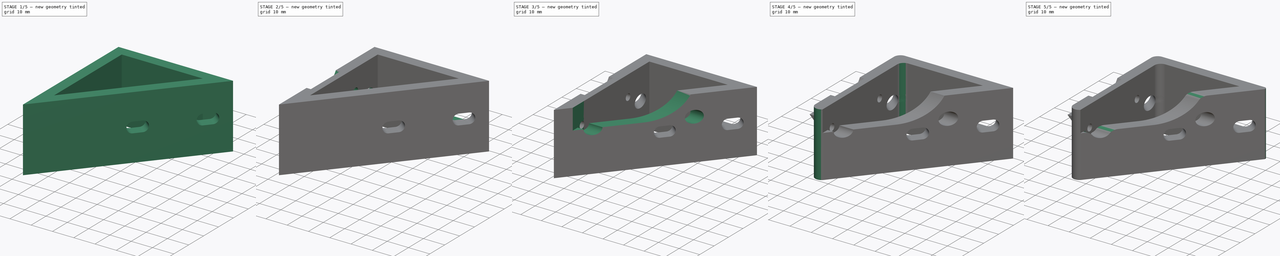
[diagram: build sequence overview — one tinted view per stage of 5, left to right]
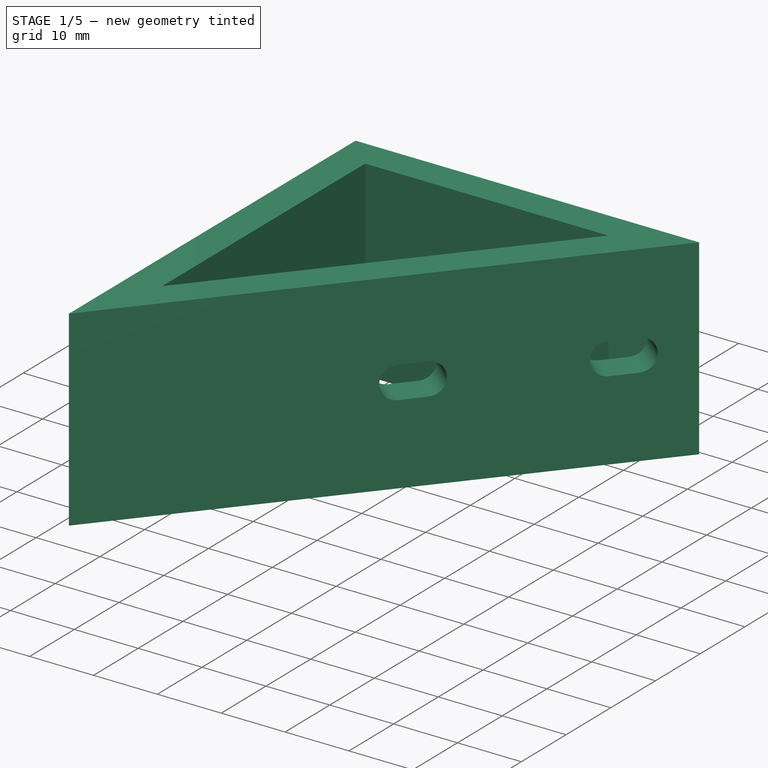
[diagram: stage 1 of 5 — iso view after this stage's code; geometry added in this stage tinted green]
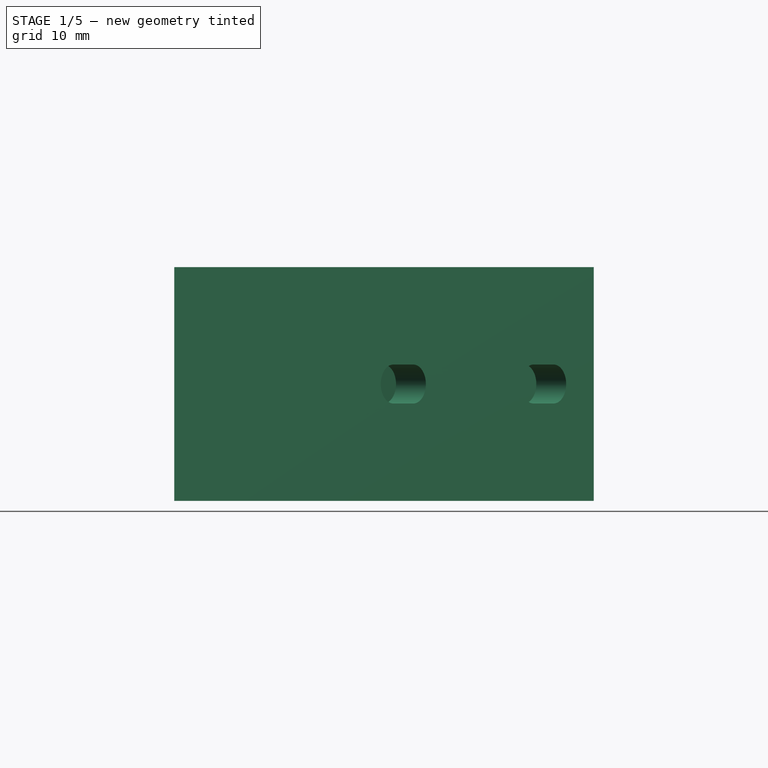
[diagram: stage 1 of 5 — front view after this stage's code; geometry added in this stage tinted green]
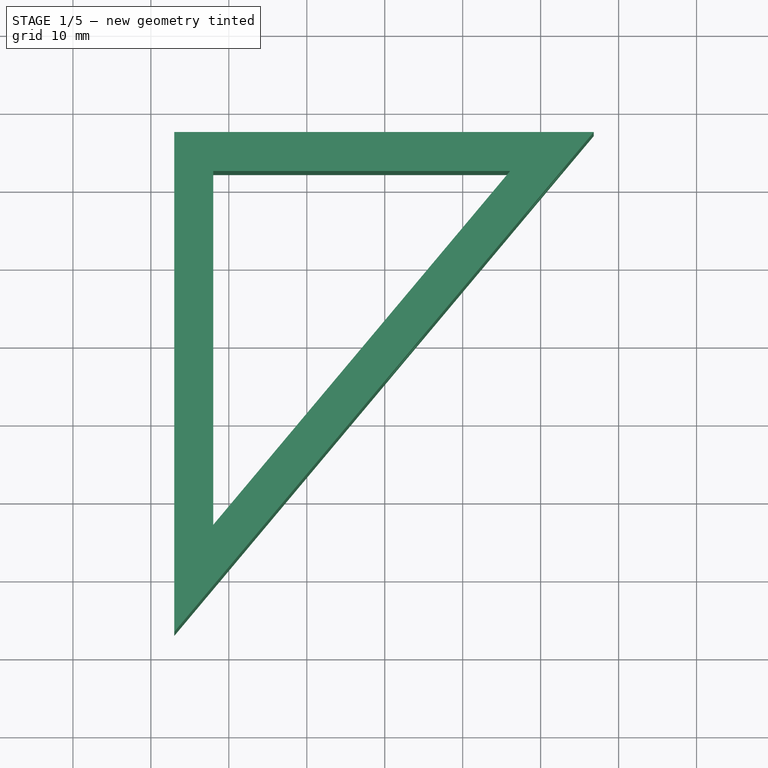
[diagram: stage 1 of 5 — top view after this stage's code; geometry added in this stage tinted green]
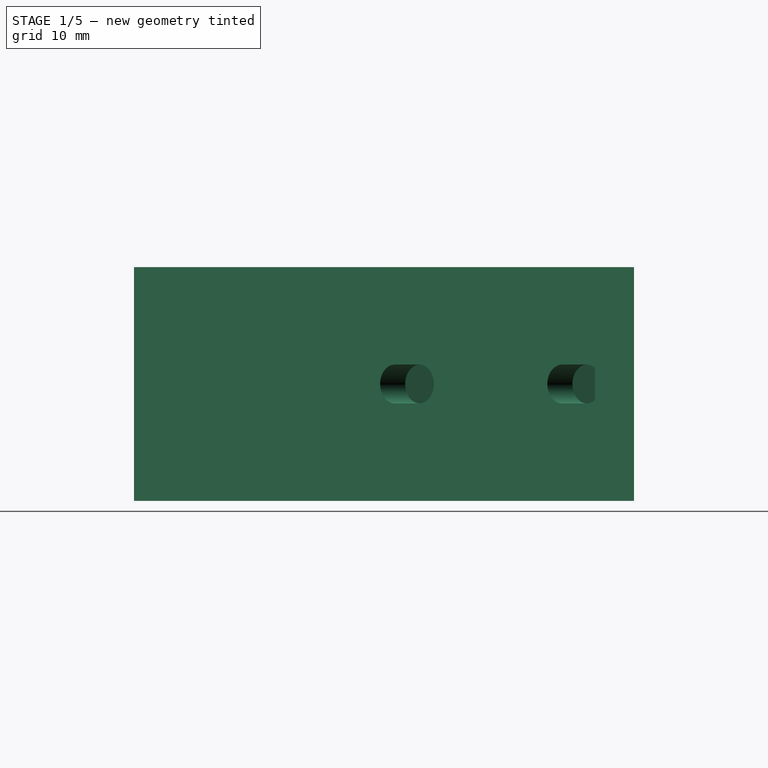
[diagram: stage 1 of 5 — right view after this stage's code; geometry added in this stage tinted green]
FCSTD DOCUMENT  (FreeCAD 0.15R4671 (Git))
Label: focuser_mount-50-3
License: All rights reserved
LicenseURL: http://en.wikipedia.org/wiki/All_rights_reserved
objects: Sketcher::SketchObject×10, PartDesign::Pocket×8, PartDesign::Fillet×6, PartDesign::Pad×2
note: 36 computed .brp shape members not serialized (recipe doc carries the construction recipe); baked Part::Feature solids carry a one-line shape summary decoded from their .brp

FEATURE [Sketcher::SketchObject] Sketch
  sketch-geometry (25):
    g0: Circle [constr] CenterX=0 CenterY=0 CenterZ=0 NormalX=0 NormalY=0 NormalZ=1 Radius=34
    g1: LineSegment [constr] StartX=1.85935e-05 StartY=-34 StartZ=0 EndX=-72.9132 EndY=-34 EndZ=0
    g2: LineSegment [constr] StartX=-26.0455 StartY=21.8547 StartZ=0 EndX=-72.9132 EndY=-34 EndZ=0
    g3: LineSegment [constr] StartX=-59 StartY=-20 StartZ=0 EndX=-45 EndY=-20 EndZ=0
    g4: LineSegment [constr] StartX=-45 StartY=-20 StartZ=0 EndX=-45 EndY=-48 EndZ=0
    g5: LineSegment [constr] StartX=-45 StartY=-48 StartZ=0 EndX=-59 EndY=-48 EndZ=0
    g6: LineSegment [constr] StartX=-59 StartY=-48 StartZ=0 EndX=-59 EndY=-20 EndZ=0
    g7: LineSegment [constr] StartX=-59 StartY=16.9 StartZ=0 EndX=-45 EndY=16.9 EndZ=0
    g8: LineSegment [constr] StartX=-45 StartY=16.9 StartZ=0 EndX=-45 EndY=-6.1 EndZ=0
    g9: LineSegment [constr] StartX=-45 StartY=-6.1 StartZ=0 EndX=-59 EndY=-6.1 EndZ=0
    g10: LineSegment [constr] StartX=-59 StartY=-6.1 StartZ=0 EndX=-59 EndY=16.9 EndZ=0
    g11: GeomPoint [constr] X=-59 Y=5.4 Z=0
    g12: LineSegment [constr] StartX=-114 StartY=26.4 StartZ=0 EndX=-67 EndY=26.4 EndZ=0
    g13: LineSegment [constr] StartX=-67 StartY=26.4 StartZ=0 EndX=-67 EndY=16.4 EndZ=0
    g14: LineSegment [constr] StartX=-67 StartY=-15.6 StartZ=0 EndX=-114 EndY=-15.6 EndZ=0
    g15: LineSegment [constr] StartX=-114 StartY=-15.6 StartZ=0 EndX=-114 EndY=26.4 EndZ=0
    g16: LineSegment [constr] StartX=-67 StartY=16.4 StartZ=0 EndX=-65 EndY=16.4 EndZ=0
    g17: LineSegment [constr] StartX=-65 StartY=16.4 StartZ=0 EndX=-65 EndY=-5.6 EndZ=0
    g18: LineSegment [constr] StartX=-65 StartY=-5.6 StartZ=0 EndX=-67 EndY=-5.6 EndZ=0
    g19: LineSegment [constr] StartX=-67 StartY=-5.6 StartZ=0 EndX=-67 EndY=-15.6 EndZ=0
    g20: LineSegment [constr] StartX=-59 StartY=5.4 StartZ=0 EndX=-114 EndY=5.4 EndZ=0
    g21: LineSegment StartX=-67 StartY=-15.6 StartZ=0 EndX=-67 EndY=-26.9529 EndZ=0
    g22: LineSegment StartX=-67 StartY=-26.9529 StartZ=0 EndX=-13.1898 EndY=37.1756 EndZ=0
    g23: LineSegment StartX=-67 StartY=-15.6 StartZ=0 EndX=-67 EndY=37.1756 EndZ=0
    g24: LineSegment StartX=-67 StartY=37.1756 StartZ=0 EndX=-13.1898 EndY=37.1756 EndZ=0
  constraints (72):
    c: Coincident(g0,g-1)
    c: Radius(g0) = 34
    c: PointOnObject(g1,g0)
    c: Horizontal(g1)
    c: Tangent(g1,g0)
    c: PointOnObject(g2,g0)
    c: Tangent(g2,g0)
    c: Angle(g1,g2) = 0.872665
    c: Coincident(g2,g1)
    c: Coincident(g3,g4)
    c: Coincident(g4,g5)
    c: Coincident(g5,g6)
    c: Coincident(g6,g3)
    c: Horizontal(g3)
    c: Horizontal(g5)
    c: Vertical(g4)
    c: Vertical(g6)
    c: DistanceX(g3) = 14
    c: DistanceY(g4) = -28
    c: Symmetric(g3,g4,g1)
    c: Coincident(g7,g8)
    c: Coincident(g8,g9)
    c: Coincident(g9,g10)
    c: Coincident(g10,g7)
    c: Horizontal(g7)
    c: Horizontal(g9)
    c: Vertical(g8)
    c: Vertical(g10)
    c: Equal(g9,g3)
    c: PointOnObject(g9,g6)
    c: PointOnObject(g11,g10)
    c: Symmetric(g10,g10,g11)
    c: DistanceY(g1,g11) = 39.4
    c: DistanceY(g8) = -23
    c: Coincident(g12,g13)
    c: Coincident(g19,g14)
    c: Coincident(g14,g15)
    c: Coincident(g15,g12)
    c: Horizontal(g12)
    c: Horizontal(g14)
    c: Vertical(g13)
    c: Vertical(g15)
    c: DistanceX(g12) = 47
    c: DistanceY(g15) = 42
    c: Coincident(g16,g17)
    c: Coincident(g17,g18)
    c: Horizontal(g16)
    c: Horizontal(g18)
    c: Vertical(g17)
    c: Coincident(g13,g16)
    c: Coincident(g19,g18)
    c: Tangent(g13,g19)
    c: Equal(g13,g19)
    c: DistanceY(g17) = -22
    c: DistanceX(g16) = 2
    c: Coincident(g20,g11)
    c: PointOnObject(g20,g15)
    c: Horizontal(g20)
    c: Symmetric(g15,g15,g20)
    c: DistanceX(g16,g7) = 6
    c: DistanceX(g-1,g4) = -45
    c: PointOnObject(g21,g2)
    c: Coincident(g21,g22)
    c: Tangent(g22,g0)
    c: Distance(g2,g22) = 20
    c: Coincident(g14,g21)
    c: Vertical(g23)
    c: Coincident(g23,g24)
    c: Coincident(g24,g22)
    c: Horizontal(g24)
    c: Coincident(g23,g14)
    c: Vertical(g21)
FEATURE [PartDesign::Pad] Pad
  Length = 30
  Length2 = 100
  Sketch = -> Sketch
  Type = 0
FEATURE [Sketcher::SketchObject] Sketch001
  ExternalGeometry = -> [Pad]
  Placement = pos=(0,0,30) rot=(0,0,1;0rad)
  Support = -> Pad [Face6]
  sketch-geometry (3):
    g0: LineSegment StartX=-62 StartY=32.1756 StartZ=0 EndX=-62 EndY=-13.2155 EndZ=0
    g1: LineSegment StartX=-62 StartY=-13.2155 StartZ=0 EndX=-23.9123 EndY=32.1756 EndZ=0
    g2: LineSegment StartX=-23.9123 StartY=32.1756 StartZ=0 EndX=-62 EndY=32.1756 EndZ=0
  constraints (9):
    c: Vertical(g0)
    c: Coincident(g0,g1)
    c: Coincident(g1,g2)
    c: Coincident(g2,g0)
    c: Horizontal(g2)
    c: DistanceY(g0,g-5) = 5
    c: Parallel(g1,g-4)
    c: Distance(g1,g-4) = 5
    c: DistanceX(g0,g-5) = -5
FEATURE [PartDesign::Pocket] Pocket
  Length = 5
  Sketch = -> Sketch001
  Type = 2
FEATURE [Sketcher::SketchObject] Sketch002
  ExternalGeometry = -> [Pocket]
  Placement = pos=(-26.0455,21.8548,0) rot=(0.834817,0.389282,0.389282;1.75037rad)
  Support = -> Pocket [Face3]
  sketch-geometry (12):
    g0: ArcOfCircle CenterX=7.99996 CenterY=15 CenterZ=0 NormalX=0 NormalY=0 NormalZ=1 Radius=2.5 StartAngle=1.5708 EndAngle=4.71239
    g1: ArcOfCircle CenterX=12 CenterY=15 CenterZ=0 NormalX=0 NormalY=0 NormalZ=1 Radius=2.5 StartAngle=4.71239 EndAngle=7.85398
    g2: LineSegment StartX=7.99996 StartY=12.5 StartZ=0 EndX=12 EndY=12.5 EndZ=0
    g3: LineSegment StartX=7.99996 StartY=17.5 StartZ=0 EndX=12 EndY=17.5 EndZ=0
    g4: LineSegment [constr] StartX=7.99996 StartY=15 StartZ=0 EndX=12 EndY=15 EndZ=0
    g5: GeomPoint [constr] X=9.99996 Y=15 Z=0
    g6: ArcOfCircle CenterX=-20 CenterY=15 CenterZ=0 NormalX=0 NormalY=0 NormalZ=1 Radius=2.5 StartAngle=1.5708 EndAngle=4.71239
    g7: ArcOfCircle CenterX=-16 CenterY=15 CenterZ=0 NormalX=0 NormalY=0 NormalZ=1 Radius=2.5 StartAngle=4.71239 EndAngle=7.85398
    g8: LineSegment StartX=-20 StartY=12.5 StartZ=0 EndX=-16 EndY=12.5 EndZ=0
    g9: LineSegment StartX=-20 StartY=17.5 StartZ=0 EndX=-16 EndY=17.5 EndZ=0
    g10: LineSegment [constr] StartX=-20 StartY=15 StartZ=0 EndX=-16 EndY=15 EndZ=0
    g11: GeomPoint [constr] X=-18 Y=15 Z=0
  constraints (27):
    c: Tangent(g0,g3) = 1.5708
    c: Tangent(g0,g2) = -1.5708
    c: Tangent(g2,g1) = -1.5708
    c: Tangent(g3,g1) = 1.5708
    c: Horizontal(g2)
    c: Equal(g0,g1)
    c: Coincident(g4,g0)
    c: Coincident(g4,g1)
    c: Symmetric(g4,g4,g5)
    c: DistanceX(g5,g-4) = 10
    c: DistanceY(g0,g0) = 5
    c: DistanceX(g0,g1) = 4
    c: DistanceY(g5,g-3) = -15
    c: Tangent(g6,g9) = 1.5708
    c: Tangent(g6,g8) = -1.5708
    c: Tangent(g8,g7) = -1.5708
    c: Tangent(g9,g7) = 1.5708
    c: Horizontal(g8)
    c: Equal(g6,g7)
    c: DistanceX(g6,g7) = 4
    c: PointOnObject(g7,g4)
    c: Coincident(g10,g6)
    c: Coincident(g10,g7)
    c: PointOnObject(g11,g10)
    c: DistanceY(g6,g6) = 5
    c: Symmetric(g10,g10,g11)
    c: DistanceX(g11,g5) = 28
FEATURE [PartDesign::Pocket] Pocket001
  Length = 5
  Sketch = -> Sketch002
  Type = 0
  UpToFace = -> Pocket [Face7]
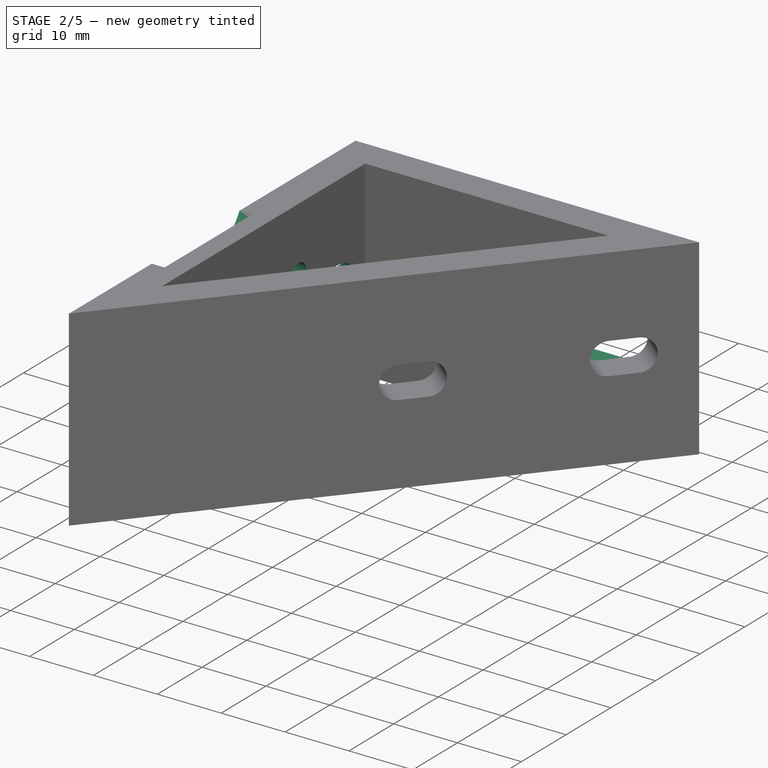
[diagram: stage 2 of 5 — iso view after this stage's code; geometry added in this stage tinted green]
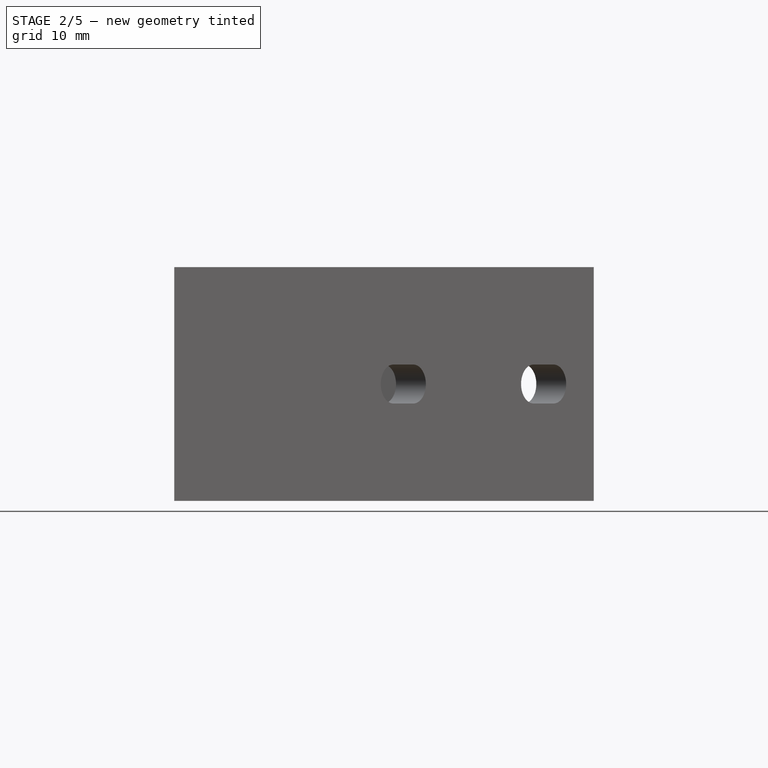
[diagram: stage 2 of 5 — front view after this stage's code; geometry added in this stage tinted green]
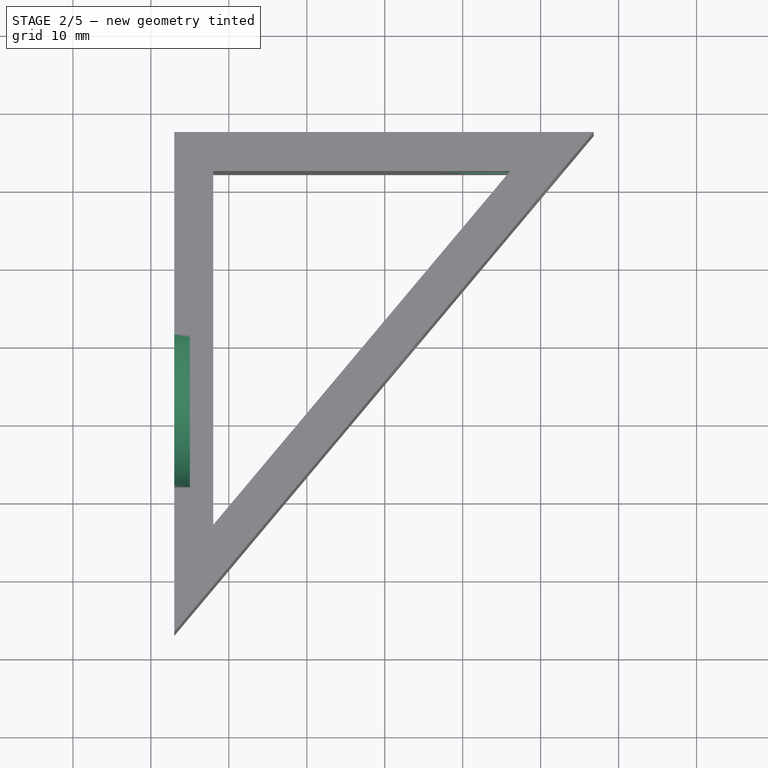
[diagram: stage 2 of 5 — top view after this stage's code; geometry added in this stage tinted green]
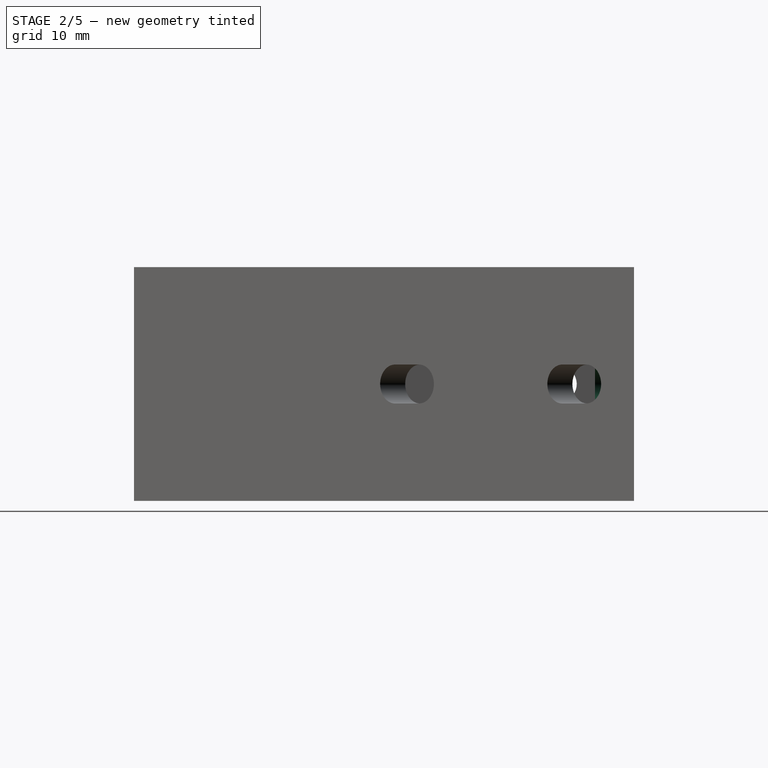
[diagram: stage 2 of 5 — right view after this stage's code; geometry added in this stage tinted green]
FEATURE [Sketcher::SketchObject] Sketch012
  ExternalGeometry = -> [Pocket001]
  Placement = pos=(-29.8757,25.0687,0) rot=(-0.313146,0.671543,0.671543;3.74854rad)
  Support = -> Pocket001 [Face15]
  sketch-geometry (5):
    g0: Circle CenterX=20 CenterY=15 CenterZ=0 NormalX=0 NormalY=0 NormalZ=1 Radius=3
    g1: ArcOfCircle CenterX=-12 CenterY=15 CenterZ=0 NormalX=0 NormalY=0 NormalZ=1 Radius=4.5 StartAngle=1.5708 EndAngle=4.71239
    g2: ArcOfCircle CenterX=-7.99996 CenterY=15 CenterZ=0 NormalX=0 NormalY=0 NormalZ=1 Radius=4.5 StartAngle=4.71239 EndAngle=7.85398
    g3: LineSegment StartX=-12 StartY=10.5 StartZ=0 EndX=-7.99996 EndY=10.5 EndZ=0
    g4: LineSegment StartX=-12 StartY=19.5 StartZ=0 EndX=-7.99996 EndY=19.5 EndZ=0
  constraints (11):
    c: Coincident(g0,g-3)
    c: Radius(g0) = 3
    c: Tangent(g1,g4) = 1.5708
    c: Tangent(g1,g3) = -1.5708
    c: Tangent(g3,g2) = -1.5708
    c: Tangent(g4,g2) = 1.5708
    c: Horizontal(g3)
    c: Equal(g1,g2)
    c: Coincident(g1,g-5)
    c: Coincident(g2,g-4)
    c: DistanceY(g1,g1) = -9
FEATURE [PartDesign::Pocket] Pocket002
  Length = 5
  Reversed = true
  Sketch = -> Sketch012
  Type = 1
FEATURE [Sketcher::SketchObject] Sketch004
  ExternalGeometry = -> [Pocket002]
  Placement = pos=(-67,0,0) rot=(0.57735,-0.57735,-0.57735;2.0944rad)
  Support = -> Pocket002 [Face2]
  sketch-geometry (7):
    g0: LineSegment [constr] StartX=-22.4 StartY=57 StartZ=0 EndX=19.6 EndY=57 EndZ=0
    g1: LineSegment [constr] StartX=19.6 StartY=57 StartZ=0 EndX=19.6 EndY=15 EndZ=0
    g2: LineSegment [constr] StartX=19.6 StartY=15 StartZ=0 EndX=-22.4 EndY=15 EndZ=0
    g3: LineSegment [constr] StartX=-22.4 StartY=15 StartZ=0 EndX=-22.4 EndY=57 EndZ=0
    g4: LineSegment [constr] StartX=-22.4 StartY=15 StartZ=0 EndX=19.6 EndY=57 EndZ=0
    g5: GeomPoint [constr] X=-1.4 Y=36 Z=0
    g6: Circle CenterX=-1.4 CenterY=36 CenterZ=0 NormalX=0 NormalY=0 NormalZ=1 Radius=11.5
  constraints (18):
    c: Coincident(g0,g1)
    c: Coincident(g1,g2)
    c: Coincident(g2,g3)
    c: Coincident(g3,g0)
    c: Horizontal(g0)
    c: Horizontal(g2)
    c: Vertical(g1)
    c: Vertical(g3)
    c: DistanceX(g0) = 42
    c: Equal(g1,g0)
    c: Coincident(g4,g2)
    c: Coincident(g4,g0)
    c: PointOnObject(g5,g4)
    c: Symmetric(g4,g4,g5)
    c: Coincident(g6,g5)
    c: Radius(g6) = 11.5
    c: DistanceY(g5,g-3) = -6
    c: DistanceX(g1,g-4) = -4
FEATURE [PartDesign::Pocket] Pocket003
  Length = 2
  Sketch = -> Sketch004
  Type = 0
FEATURE [Sketcher::SketchObject] Sketch005
  ExternalGeometry = -> [Pocket002]
  Placement = pos=(-67,0,0) rot=(0.57735,-0.57735,-0.57735;2.0944rad)
  Support = -> Pocket003 [Face2]
  sketch-geometry (10):
    g0: LineSegment [constr] StartX=-22.4 StartY=57 StartZ=0 EndX=19.6 EndY=57 EndZ=0
    g1: LineSegment [constr] StartX=19.6 StartY=57 StartZ=0 EndX=19.6 EndY=15 EndZ=0
    g2: LineSegment [constr] StartX=19.6 StartY=15 StartZ=0 EndX=-22.4 EndY=15 EndZ=0
    g3: LineSegment [constr] StartX=-22.4 StartY=15 StartZ=0 EndX=-22.4 EndY=57 EndZ=0
    g4: LineSegment [constr] StartX=-22.4 StartY=15 StartZ=0 EndX=19.6 EndY=57 EndZ=0
    g5: GeomPoint [constr] X=-1.4 Y=36 Z=0
    g6: Circle [constr] CenterX=-1.4 CenterY=36 CenterZ=0 NormalX=0 NormalY=0 NormalZ=1 Radius=11
    g7: Circle CenterX=-17.4 CenterY=20 CenterZ=0 NormalX=0 NormalY=0 NormalZ=1 Radius=1.6
    g8: Circle CenterX=14.6 CenterY=20 CenterZ=0 NormalX=0 NormalY=0 NormalZ=1 Radius=1.6
    g9: LineSegment [constr] StartX=-1.4 StartY=36 StartZ=0 EndX=-1.4 EndY=15 EndZ=0
  constraints (26):
    c: Coincident(g0,g1)
    c: Coincident(g1,g2)
    c: Coincident(g2,g3)
    c: Coincident(g3,g0)
    c: Horizontal(g0)
    c: Horizontal(g2)
    c: Vertical(g1)
    c: Vertical(g3)
    c: DistanceX(g0) = 42
    c: Equal(g1,g0)
    c: Coincident(g4,g2)
    c: Coincident(g4,g0)
    c: PointOnObject(g5,g4)
    c: Symmetric(g4,g4,g5)
    c: Coincident(g6,g5)
    c: Radius(g6) = 11
    c: PointOnObject(g7,g4)
    c: DistanceX(g7,g2) = -5
    c: Radius(g7) = 1.6
    c: Coincident(g9,g5)
    c: PointOnObject(g9,g2)
    c: Vertical(g9)
    c: Symmetric(g8,g7,g9)
    c: Equal(g8,g7)
    c: DistanceY(g5,g-4) = -6
    c: DistanceX(g1,g-4) = -4
FEATURE [PartDesign::Pocket] Pocket004
  Length = 5
  Sketch = -> Sketch005
  Type = 0
  UpToFace = -> Pocket003 [Face18]
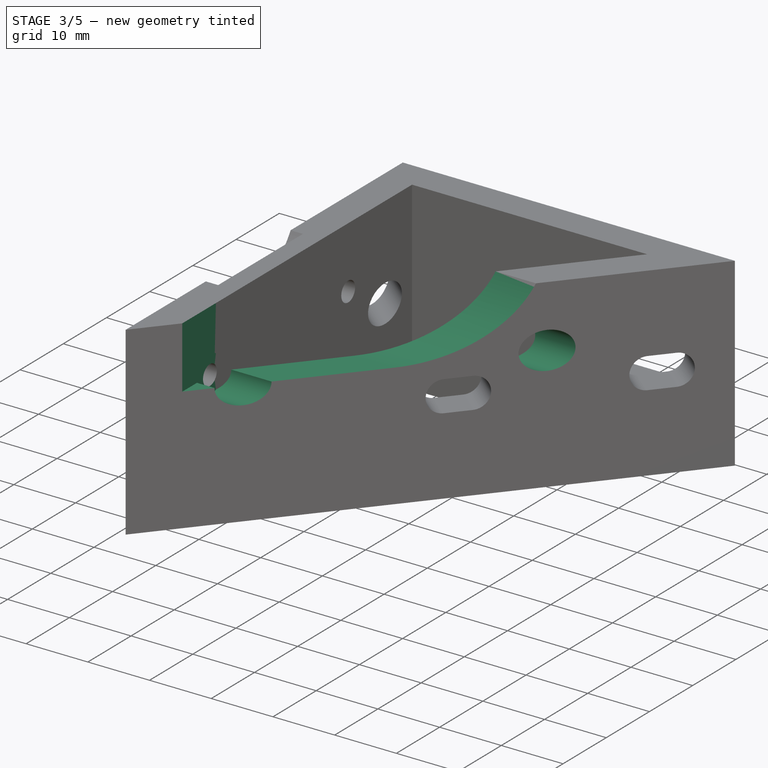
[diagram: stage 3 of 5 — iso view after this stage's code; geometry added in this stage tinted green]
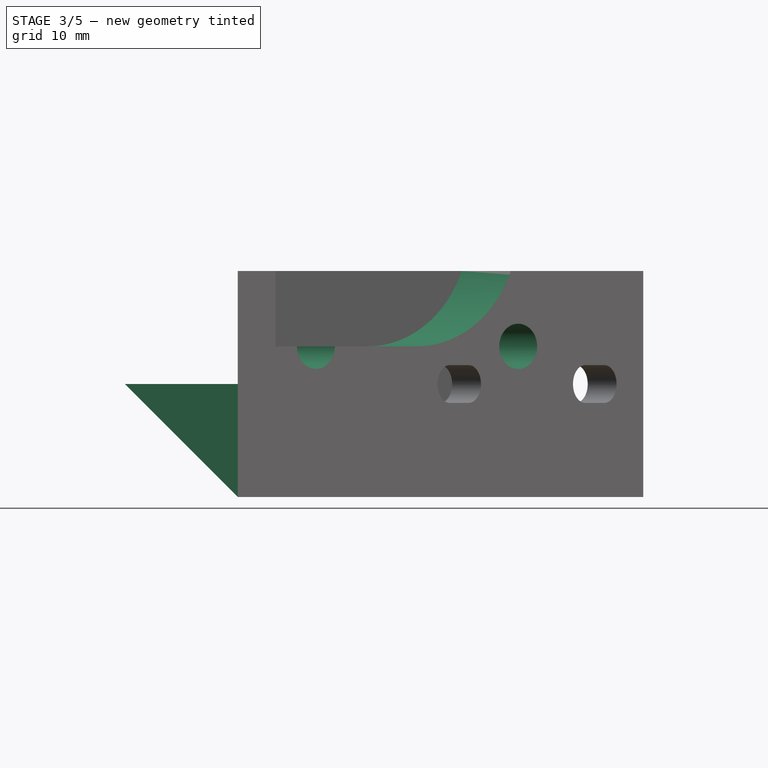
[diagram: stage 3 of 5 — front view after this stage's code; geometry added in this stage tinted green]
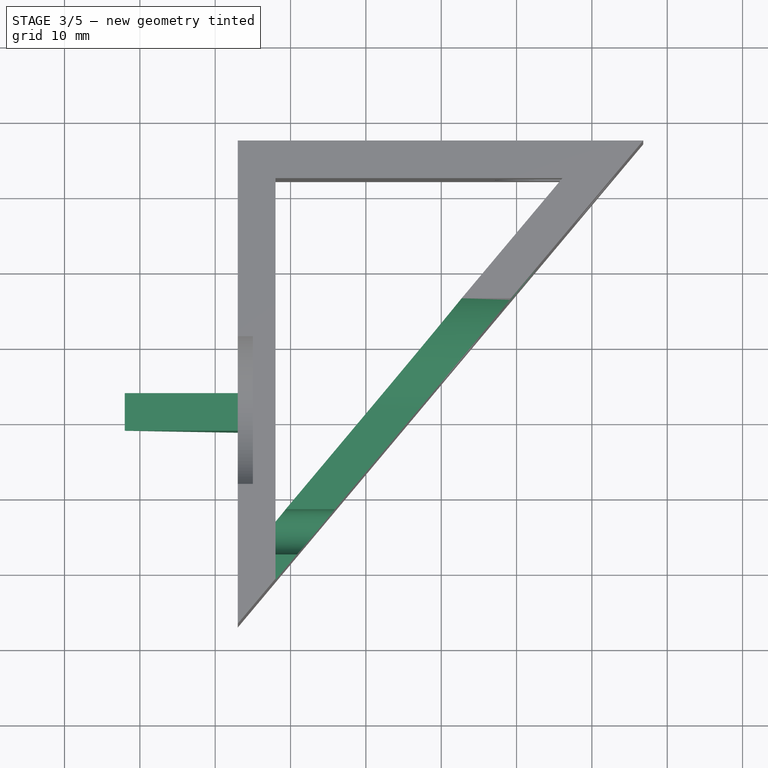
[diagram: stage 3 of 5 — top view after this stage's code; geometry added in this stage tinted green]
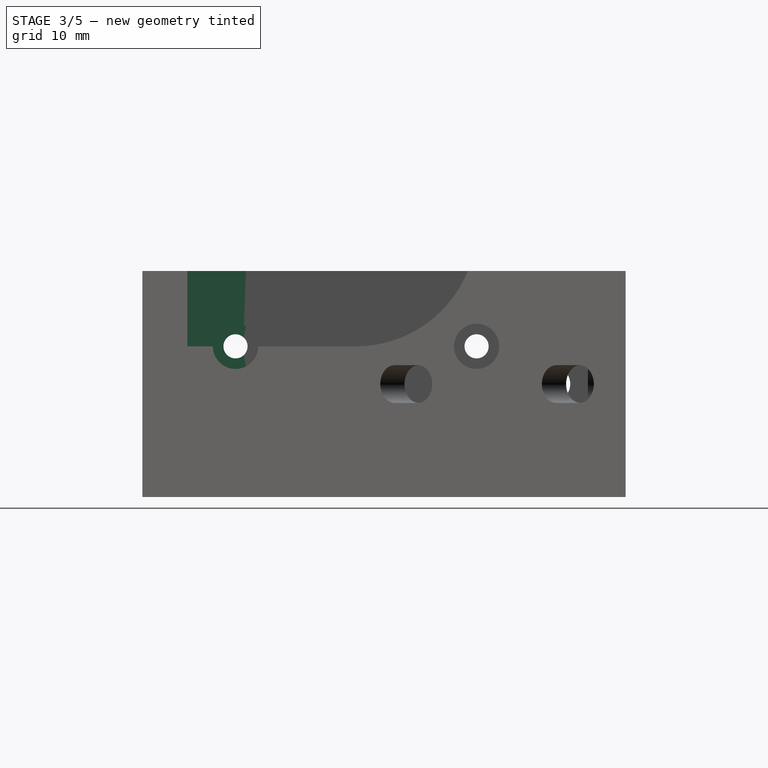
[diagram: stage 3 of 5 — right view after this stage's code; geometry added in this stage tinted green]
FEATURE [Sketcher::SketchObject] Sketch017
  ExternalGeometry = -> [Pocket004]
  Placement = pos=(-62,0,0) rot=(0.57735,0.57735,0.57735;2.0944rad)
  Support = -> Pocket004 [Face9]
  sketch-geometry (2):
    g0: Circle CenterX=-14.6 CenterY=20 CenterZ=0 NormalX=0 NormalY=0 NormalZ=1 Radius=3
    g1: Circle CenterX=17.4 CenterY=20 CenterZ=0 NormalX=0 NormalY=0 NormalZ=1 Radius=3
  constraints (4):
    c: Coincident(g0,g-3)
    c: Coincident(g1,g-4)
    c: Radius(g0) = 3
    c: Radius(g1) = 3
FEATURE [PartDesign::Pocket] Pocket005
  Length = 5
  Reversed = true
  Sketch = -> Sketch017
  Type = 1
FEATURE [Sketcher::SketchObject] Sketch018
  ExternalGeometry = -> [Pocket005]
  Placement = pos=(-62,0,0) rot=(0.57735,0.57735,0.57735;2.0944rad)
  Support = -> Pocket005 [Face9]
  sketch-geometry (3):
    g0: ArcOfCircle CenterX=1.4 CenterY=36 CenterZ=0 NormalX=0 NormalY=0 NormalZ=1 Radius=16 StartAngle=4.71239 EndAngle=8.47339
    g1: LineSegment StartX=1.40003 StartY=20 StartZ=0 EndX=-48.6 EndY=20 EndZ=0
    g2: LineSegment StartX=-48.6 StartY=20 StartZ=0 EndX=-7.88883 EndY=49.0276 EndZ=0
  constraints (9):
    c: Coincident(g0,g-3)
    c: Radius(g0) = 16
    c: Coincident(g2,g1)
    c: Tangent(g2,g0)
    c: Coincident(g0,g1)
    c: Coincident(g0,g2)
    c: Tangent(g1,g0)
    c: Horizontal(g1)
    c: DistanceX(g1) = -50
FEATURE [PartDesign::Pocket] Pocket006
  Length = 5
  Reversed = true
  Sketch = -> Sketch018
  Type = 1
FEATURE [Sketcher::SketchObject] Sketch019
  ExternalGeometry = -> [Pocket006]
  Placement = pos=(-67,0,0) rot=(0.57735,-0.57735,-0.57735;2.0944rad)
  Support = -> Pocket006 [Face5]
  sketch-geometry (6):
    g0: Circle [constr] CenterX=-1.4 CenterY=36 CenterZ=0 NormalX=0 NormalY=0 NormalZ=1 Radius=21
    g1: LineSegment StartX=-3.89995 StartY=0 StartZ=0 EndX=1.10005 EndY=0 EndZ=0
    g2: LineSegment StartX=1.10005 StartY=0 StartZ=0 EndX=1.10005 EndY=15 EndZ=0
    g3: LineSegment StartX=1.10005 StartY=15 StartZ=0 EndX=-3.89995 EndY=15 EndZ=0
    g4: LineSegment StartX=-3.89995 StartY=15 StartZ=0 EndX=-3.89995 EndY=0 EndZ=0
    g5: GeomPoint [constr] X=-1.39995 Y=15 Z=0
  constraints (16):
    c: Coincident(g0,g-3)
    c: Radius(g0) = 21
    c: Coincident(g1,g2)
    c: Coincident(g2,g3)
    c: Coincident(g3,g4)
    c: Coincident(g4,g1)
    c: Horizontal(g1)
    c: Horizontal(g3)
    c: Vertical(g2)
    c: Vertical(g4)
    c: PointOnObject(g1,g-4)
    c: DistanceX(g3) = -5
    c: Tangent(g3,g0)
    c: PointOnObject(g5,g3)
    c: Symmetric(g3,g3,g5)
    c: PointOnObject(g5,g0)
FEATURE [PartDesign::Pad] Pad001
  Length = 15
  Length2 = 100
  Sketch = -> Sketch019
  Type = 0
FEATURE [Sketcher::SketchObject] Sketch020
  ExternalGeometry = -> [Pad001]
  Placement = pos=(0,-1.10005,0) rot=(1,0,0;1.5708rad)
  Support = -> Pad001 [Face29]
  sketch-geometry (3):
    g0: LineSegment StartX=-82 StartY=15 StartZ=0 EndX=-82 EndY=0 EndZ=0
    g1: LineSegment StartX=-82 StartY=0 StartZ=0 EndX=-67 EndY=0 EndZ=0
    g2: LineSegment StartX=-67 StartY=0 StartZ=0 EndX=-82 EndY=15 EndZ=0
  constraints (8):
    c: Coincident(g-5,g0)
    c: Vertical(g0)
    c: Coincident(g0,g1)
    c: PointOnObject(g1,g-4)
    c: Horizontal(g1)
    c: Coincident(g1,g2)
    c: Coincident(g2,g0)
    c: Angle(g-3,g2) = 0.785398
FEATURE [PartDesign::Pocket] Pocket007
  Length = 5
  Sketch = -> Sketch020
  Type = 1
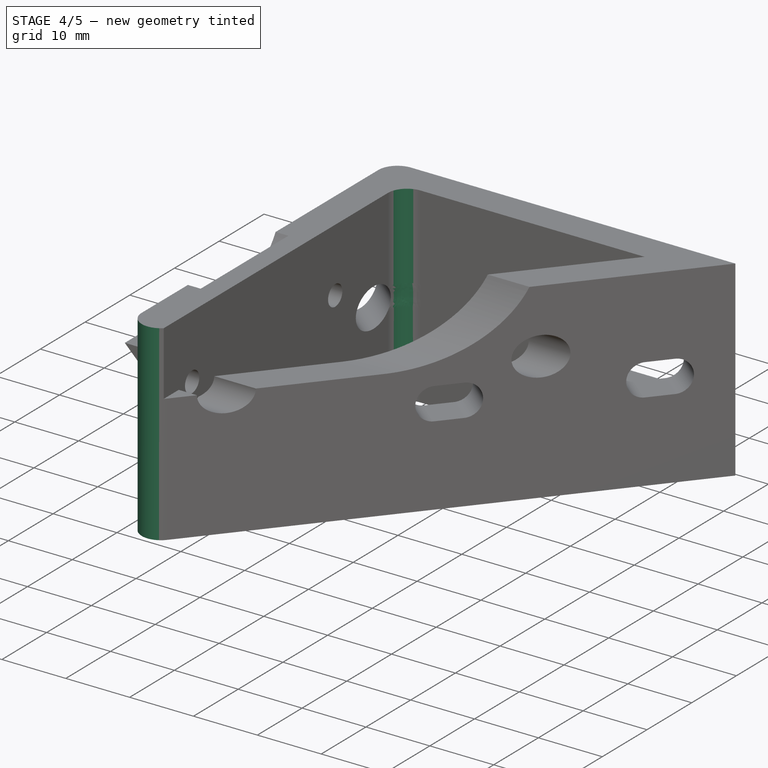
[diagram: stage 4 of 5 — iso view after this stage's code; geometry added in this stage tinted green]
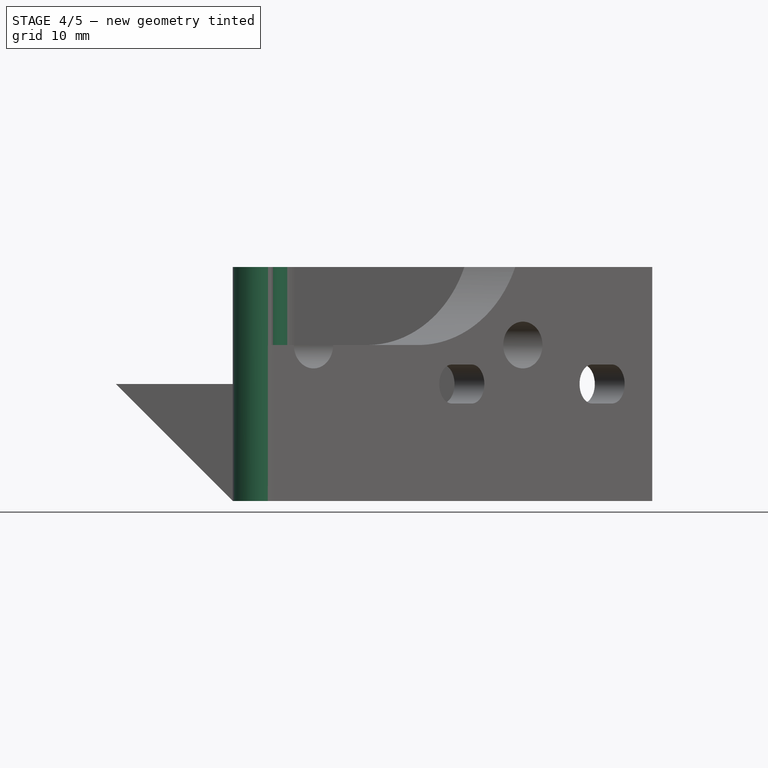
[diagram: stage 4 of 5 — front view after this stage's code; geometry added in this stage tinted green]
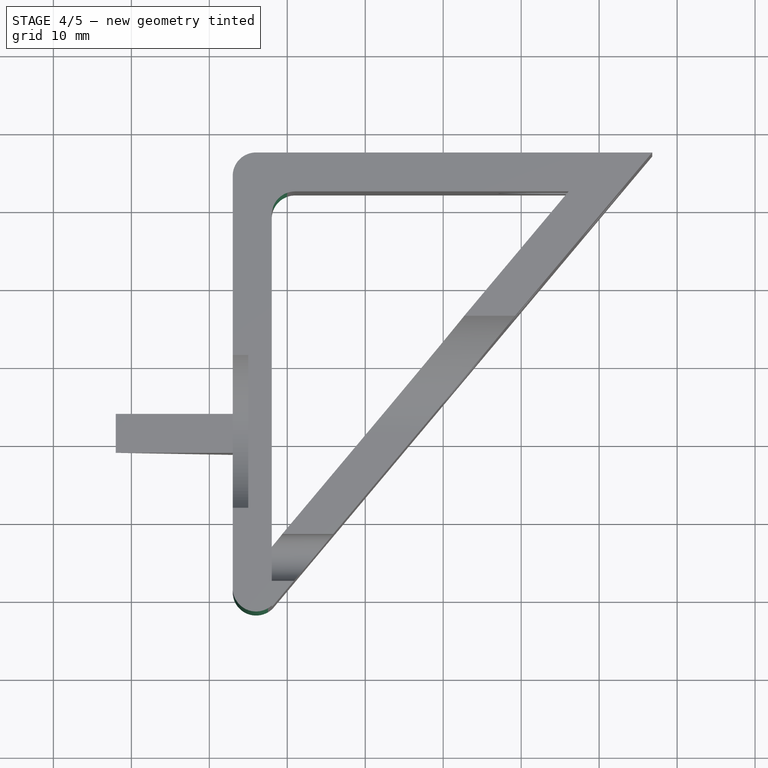
[diagram: stage 4 of 5 — top view after this stage's code; geometry added in this stage tinted green]
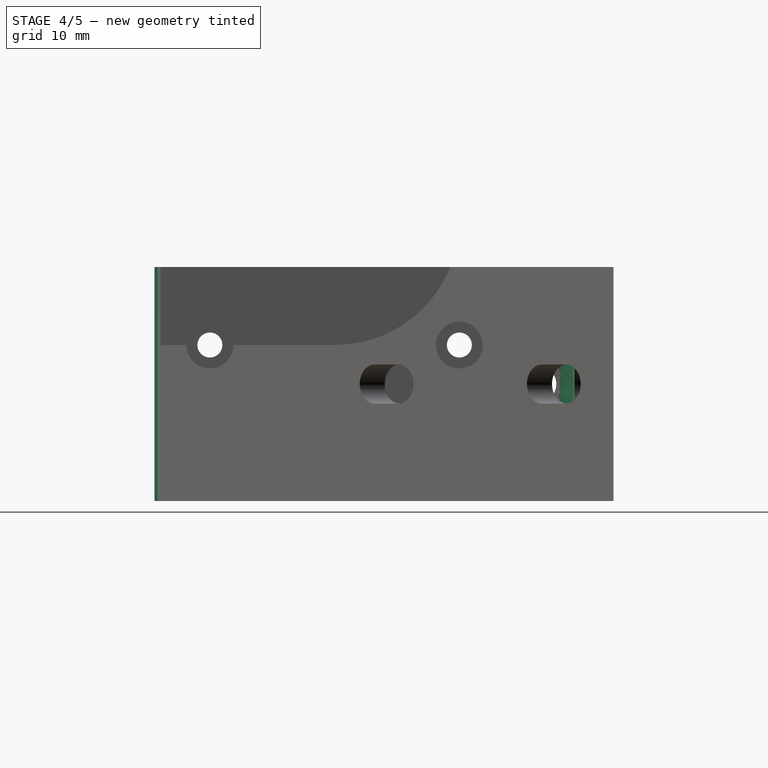
[diagram: stage 4 of 5 — right view after this stage's code; geometry added in this stage tinted green]
FEATURE [PartDesign::Fillet] Fillet
  Base = -> Pocket007 [Edge2]
  Radius = 3
FEATURE [PartDesign::Fillet] Fillet001
  Base = -> Fillet [Edge27]
  Radius = 3
FEATURE [PartDesign::Fillet] Fillet002
  Base = -> Fillet001 [Edge76]
  Radius = 3
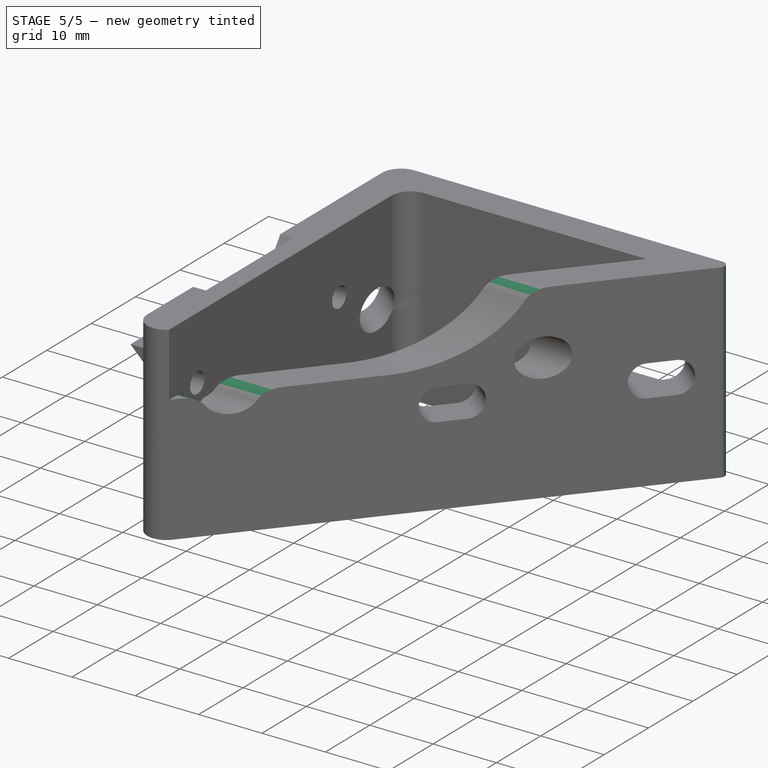
[diagram: stage 5 of 5 — iso view after this stage's code; geometry added in this stage tinted green]
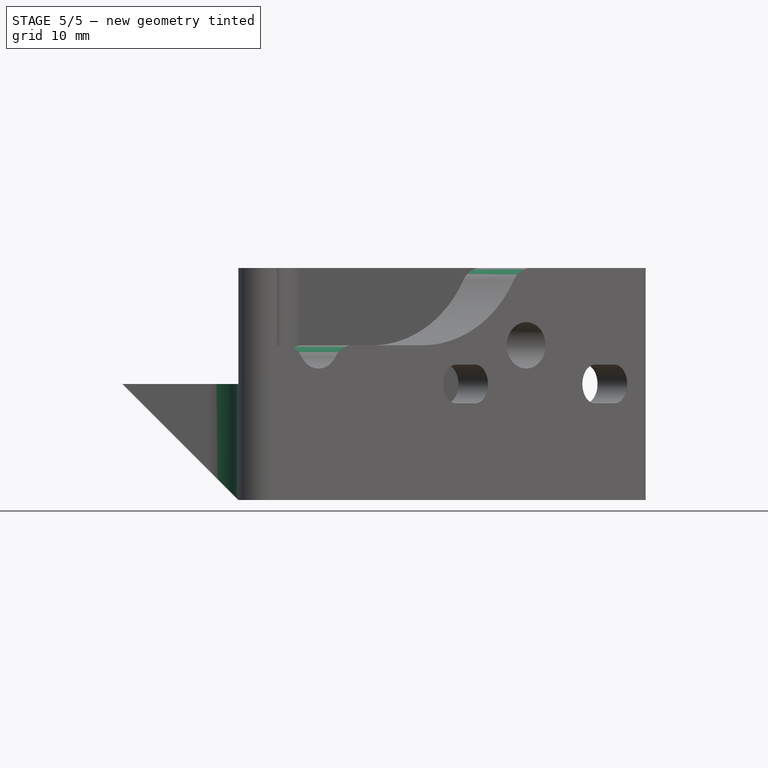
[diagram: stage 5 of 5 — front view after this stage's code; geometry added in this stage tinted green]
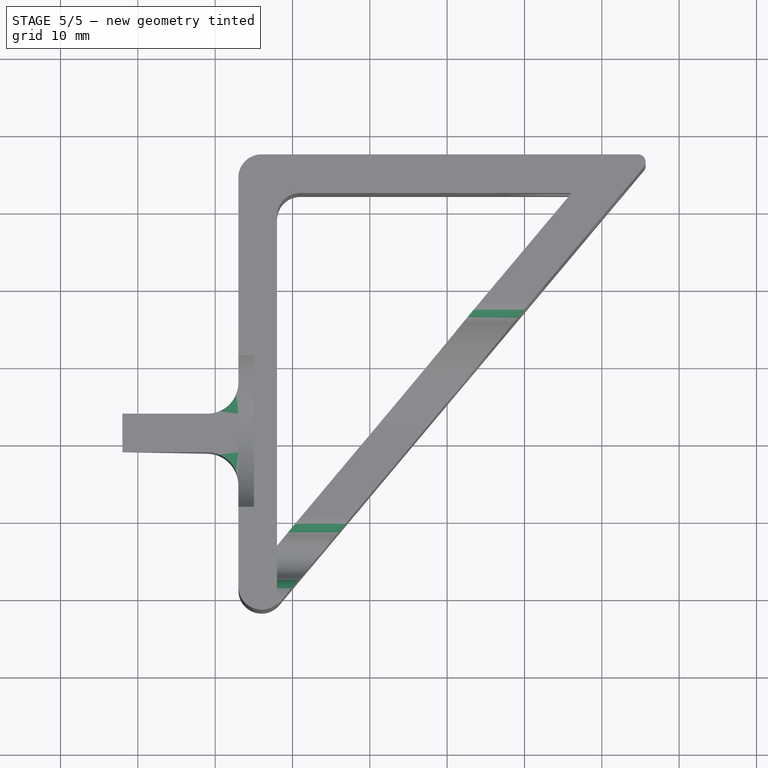
[diagram: stage 5 of 5 — top view after this stage's code; geometry added in this stage tinted green]
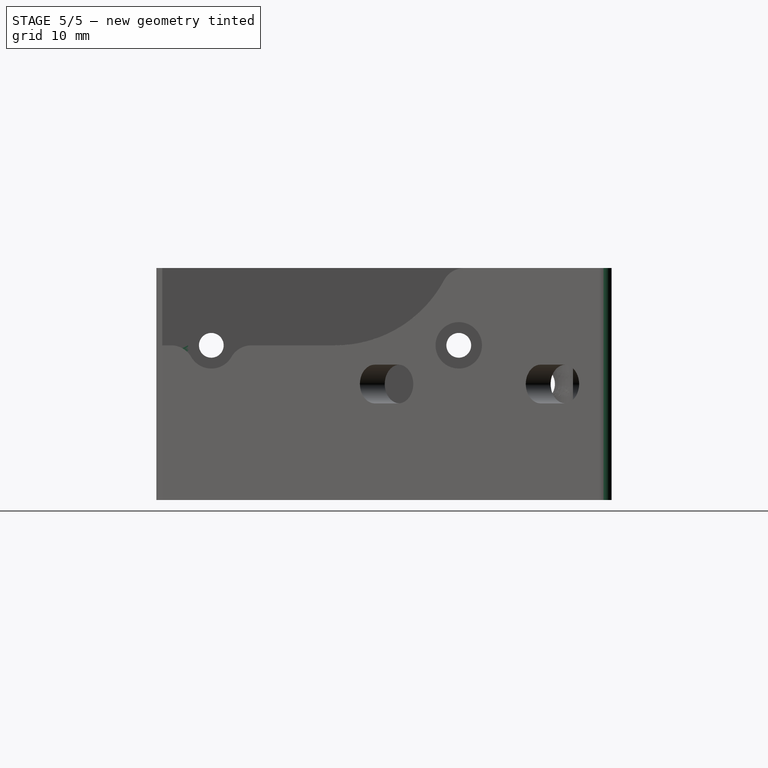
[diagram: stage 5 of 5 — right view after this stage's code; geometry added in this stage tinted green]
FEATURE [PartDesign::Fillet] Fillet003
  Base = -> Fillet002 [Edge114,Edge113,Edge94]
  Radius = 3
FEATURE [PartDesign::Fillet] Fillet004
  Base = -> Fillet003 [Edge112,Edge109]
  Radius = 4
FEATURE [PartDesign::Fillet] Fillet005
  Base = -> Fillet004 [Edge36]
  Radius = 1
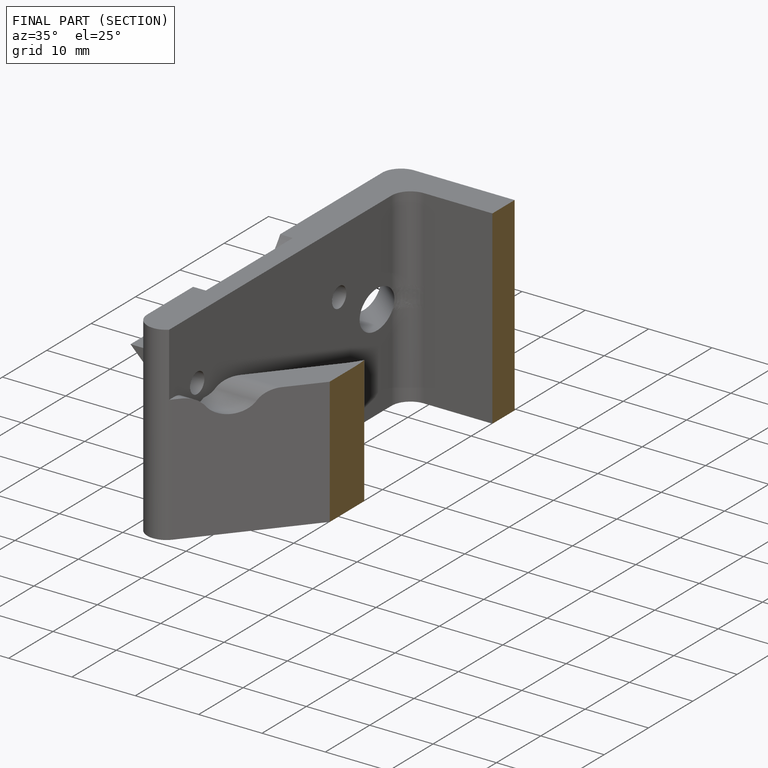
[diagram: finished part — half-section view (interior)]
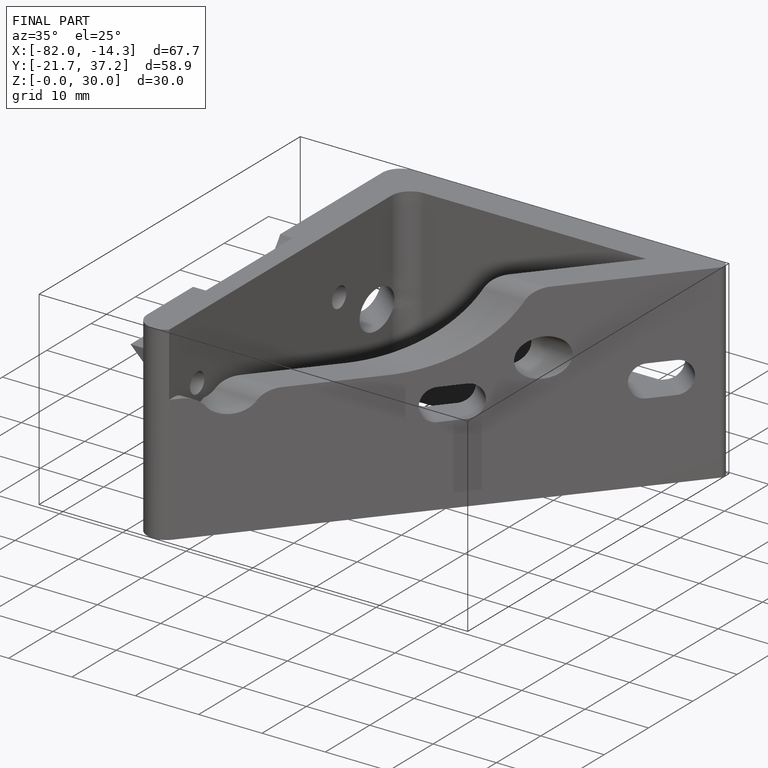
[diagram: finished part — iso view with bounding-box wireframe]
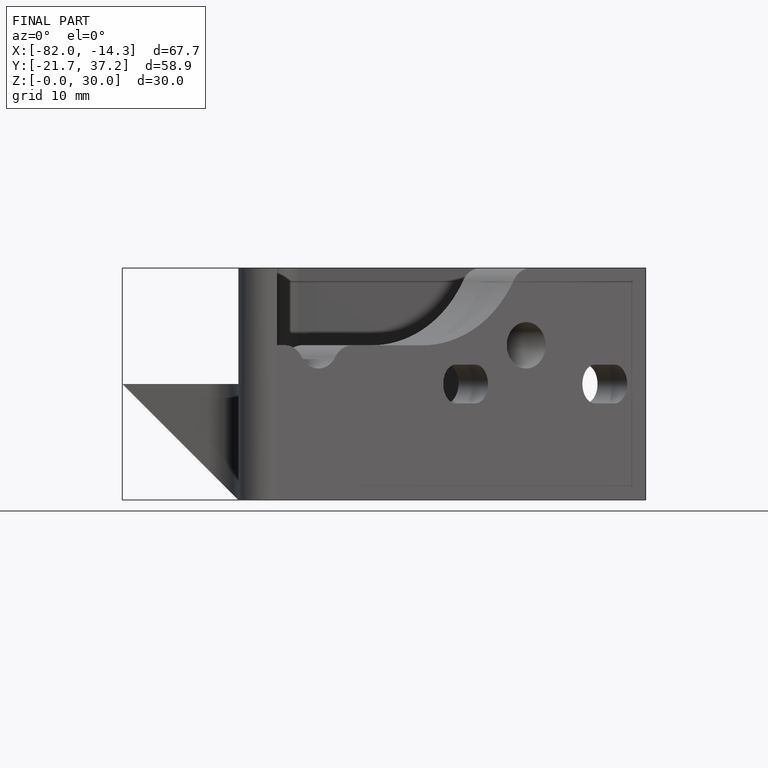
[diagram: finished part — front view with bounding-box wireframe]
